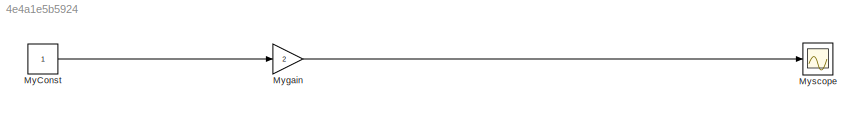
MODEL slx_4e4a1e5b5924
KIND model
BLOCK [Constant] MyConst
BLOCK [Gain] Mygain
  Gain = 2
  OutDataTypeStr = Inherit: Inherit via internal rule
  ParamDataTypeStr = Inherit: Inherit via internal rule
  SaturateOnIntegerOverflow = off
BLOCK [Scope] Myscope
  DataFormat = StructureWithTime
  Floating = off
  NumInputPorts = 1
  Ports = [1]
  SampleTime = 0
  ShowLegends = off
LINE MyConst:1 -> Mygain:1
LINE Mygain:1 -> Myscope:1
